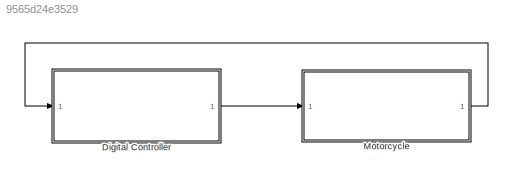
MODEL slx_9565d24e3529
KIND model
CONFIG AbsTol = auto
CONFIG EnableMultiTasking = on
CONFIG FixedStep = auto
CONFIG MaxStep = auto
CONFIG MinStep = auto
CONFIG RelTol = 1e-3
CONFIG SampleTimeConstraint = Unconstrained
CONFIG SolverName = FixedStepAuto
CONFIG StartTime = 0.0
CONFIG StopTime = inf
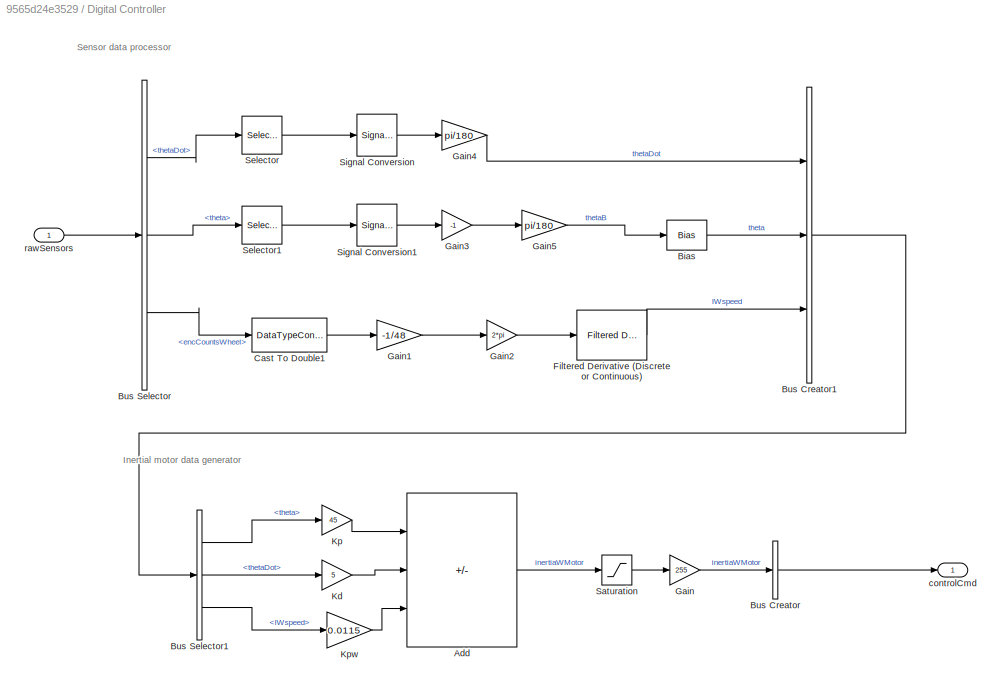
BLOCK [SubSystem] Digital Controller
  Ports = [1, 1]
  RequestExecContextInheritance = off
BLOCK [Sum] Digital Controller/Add
  IconShape = rectangular
  Inputs = ++-
  Ports = [3, 1]
BLOCK [Bias] Digital Controller/Bias
  SaturateOnIntegerOverflow = off
BLOCK [BusCreator] Digital Controller/Bus Creator
  DisplayOption = bar
  InheritFromInputs = on
  Inputs = 1
  Ports = [1, 1]
BLOCK [BusCreator] Digital Controller/Bus Creator1
  DisplayOption = bar
  InheritFromInputs = on
  Inputs = 3
  Ports = [3, 1]
BLOCK [BusSelector] Digital Controller/Bus Selector
  OutputSignals = thetaDot,theta,encCountsWheel
  Ports = [1, 3]
BLOCK [BusSelector] Digital Controller/Bus Selector1
  OutputSignals = theta,thetaDot,IWspeed
  Ports = [1, 3]
BLOCK [DataTypeConversion] Digital Controller/Cast To Double1
  OutDataTypeStr = double
  RndMeth = Floor
  SaturateOnIntegerOverflow = off
BLOCK [Reference] Digital Controller/Filtered Derivative (Discrete or Continuous)  REF=eeGeneralControl/Filtered Derivative
(Discrete or Continuous)
  Ports = [1, 1]
  SourceBlock = eeGeneralControl/Filtered Derivative\n(Discrete or Continuous)
  SourceProductBaseCode = PS
  SourceType = Filtered Derivative (Discrete or Continuous)
BLOCK [Gain] Digital Controller/Gain
  Gain = 255
BLOCK [Gain] Digital Controller/Gain1
  Gain = -1/48
BLOCK [Gain] Digital Controller/Gain2
  Gain = 2*pi
BLOCK [Gain] Digital Controller/Gain3
  Gain = -1
BLOCK [Gain] Digital Controller/Gain4
  Gain = pi/180
BLOCK [Gain] Digital Controller/Gain5
  Gain = pi/180
BLOCK [Gain] Digital Controller/Kd
  Gain = 5
BLOCK [Gain] Digital Controller/Kp
  Gain = 45
BLOCK [Gain] Digital Controller/Kpw
  Gain = 0.0115
BLOCK [Saturate] Digital Controller/Saturation
  LowerLimit = -1
  UpperLimit = 1
BLOCK [Selector] Digital Controller/Selector
  IndexOptions = Index vector (dialog)
  Indices = [2]
  InputPortWidth = 3
  OutputSizes = 1
  Ports = [1, 1]
BLOCK [Selector] Digital Controller/Selector1
  IndexOptions = Index vector (dialog)
  Indices = [2]
  InputPortWidth = 3
  OutputSizes = 1
  Ports = [1, 1]
BLOCK [SignalConversion] Digital Controller/Signal Conversion
  OverrideOpt = off
BLOCK [SignalConversion] Digital Controller/Signal Conversion1
  OverrideOpt = off
BLOCK [Outport] Digital Controller/controlCmd
BLOCK [Inport] Digital Controller/rawSensors
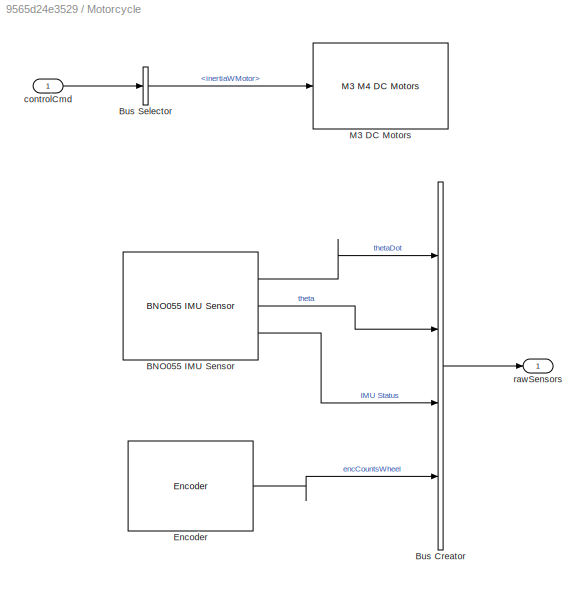
BLOCK [SubSystem] Motorcycle
  Ports = [1, 1]
  RequestExecContextInheritance = off
BLOCK [Reference] Motorcycle/BNO055 IMU Sensor  REF=arduinosensorlib/BNO055 IMU Sensor
  Ports = [0, 3]
  SourceBlock = arduinosensorlib/BNO055 IMU Sensor
  SourceProductBaseCode = ARDUINO
  SourceType = Arduino BNO055
BLOCK [BusCreator] Motorcycle/Bus Creator
  DisplayOption = bar
  InheritFromInputs = on
  Inputs = 4
  Ports = [4, 1]
BLOCK [BusSelector] Motorcycle/Bus Selector
  OutputSignals = inertiaWMotor
  Ports = [1, 1]
BLOCK [Reference] Motorcycle/Encoder  REF=arduinomotorcarrierlib/Encoder
  Ports = [0, 1]
  SourceBlock = arduinomotorcarrierlib/Encoder
  SourceProductBaseCode = ARDUINO
  SourceType = motorcarrier.blocks.mkrmotorcarrier_Encoder
BLOCK [Reference] Motorcycle/M3 DC Motors  REF=arduinomotorcarrierlib/M3 M4 DC Motors
  Ports = [1]
  SourceBlock = arduinomotorcarrierlib/M3 M4 DC Motors
  SourceProductBaseCode = ARDUINO
  SourceType = DC Motor
BLOCK [Inport] Motorcycle/controlCmd
BLOCK [Outport] Motorcycle/rawSensors
ANNOTATION Digital Controller: Inertial motor data generator
ANNOTATION Digital Controller: Sensor data processor
LINE Digital Controller/Add:1 -> Digital Controller/Saturation:1
LINE Digital Controller/Bias:1 -> Digital Controller/Bus Creator1:2
LINE Digital Controller/Bus Creator1:1 -> Digital Controller/Bus Selector1:1
LINE Digital Controller/Bus Creator:1 -> Digital Controller/controlCmd:1
LINE Digital Controller/Bus Selector1:1 -> Digital Controller/Kp:1
LINE Digital Controller/Bus Selector1:2 -> Digital Controller/Kd:1
LINE Digital Controller/Bus Selector1:3 -> Digital Controller/Kpw:1
LINE Digital Controller/Bus Selector:1 -> Digital Controller/Selector:1
LINE Digital Controller/Bus Selector:2 -> Digital Controller/Selector1:1
LINE Digital Controller/Bus Selector:3 -> Digital Controller/Cast To Double1:1
LINE Digital Controller/Cast To Double1:1 -> Digital Controller/Gain1:1
LINE Digital Controller/Filtered Derivative (Discrete or Continuous):1 -> Digital Controller/Bus Creator1:3
LINE Digital Controller/Gain1:1 -> Digital Controller/Gain2:1
LINE Digital Controller/Gain2:1 -> Digital Controller/Filtered Derivative (Discrete or Continuous):1
LINE Digital Controller/Gain3:1 -> Digital Controller/Gain5:1
LINE Digital Controller/Gain4:1 -> Digital Controller/Bus Creator1:1
LINE Digital Controller/Gain5:1 -> Digital Controller/Bias:1
LINE Digital Controller/Gain:1 -> Digital Controller/Bus Creator:1
LINE Digital Controller/Kd:1 -> Digital Controller/Add:2
LINE Digital Controller/Kp:1 -> Digital Controller/Add:1
LINE Digital Controller/Kpw:1 -> Digital Controller/Add:3
LINE Digital Controller/Saturation:1 -> Digital Controller/Gain:1
LINE Digital Controller/Selector1:1 -> Digital Controller/Signal Conversion1:1
LINE Digital Controller/Selector:1 -> Digital Controller/Signal Conversion:1
LINE Digital Controller/Signal Conversion1:1 -> Digital Controller/Gain3:1
LINE Digital Controller/Signal Conversion:1 -> Digital Controller/Gain4:1
LINE Digital Controller/rawSensors:1 -> Digital Controller/Bus Selector:1
LINE Digital Controller:1 -> Motorcycle:1
LINE Motorcycle/BNO055 IMU Sensor:1 -> Motorcycle/Bus Creator:1
LINE Motorcycle/BNO055 IMU Sensor:2 -> Motorcycle/Bus Creator:2
LINE Motorcycle/BNO055 IMU Sensor:3 -> Motorcycle/Bus Creator:3
LINE Motorcycle/Bus Creator:1 -> Motorcycle/rawSensors:1
LINE Motorcycle/Bus Selector:1 -> Motorcycle/M3 DC Motors:1
LINE Motorcycle/Encoder:1 -> Motorcycle/Bus Creator:4
LINE Motorcycle/controlCmd:1 -> Motorcycle/Bus Selector:1
LINE Motorcycle:1 -> Digital Controller:1
